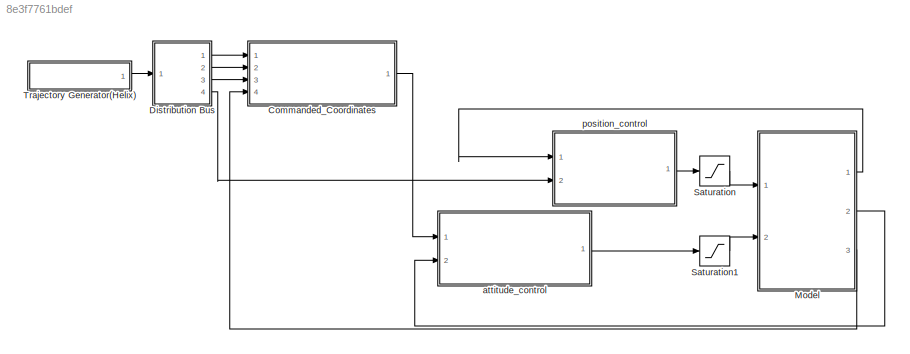
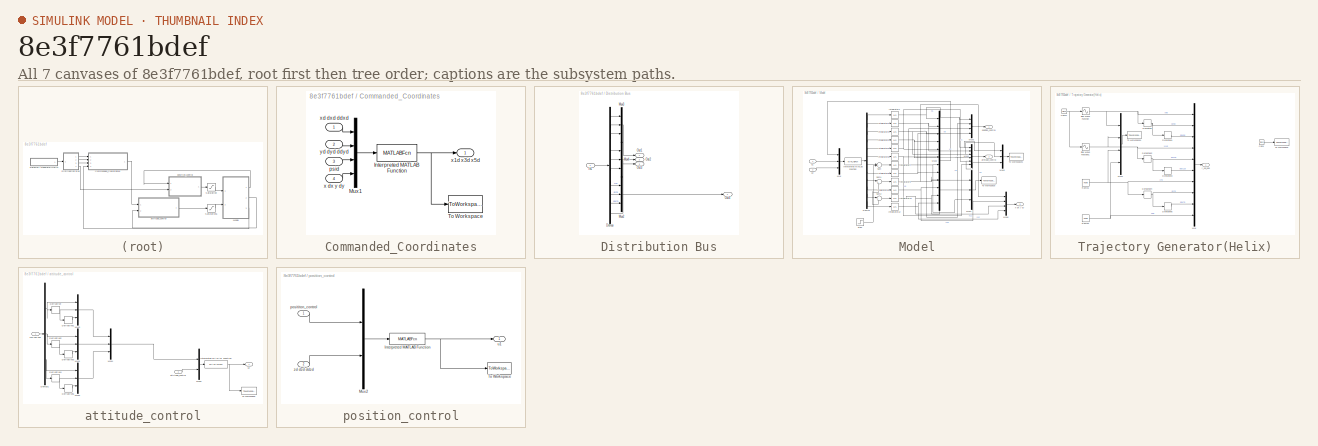
[diagram: thumbnail index - all 7 canvases of the model, root first then tree order]
MODEL slx_8e3f7761bdef
KIND model
BLOCK [SubSystem] Commanded_Coordinates
  Ports = [4, 1]
  RequestExecContextInheritance = off
BLOCK [MATLABFcn] Commanded_Coordinates/Interpreted MATLAB Function
  MATLABFcn = commanded_cord(u)
  OutputDimensions = 3
  Ports = [1, 1]
BLOCK [Mux] Commanded_Coordinates/Mux1
  DisplayOption = bar
  Ports = [4, 1]
BLOCK [ToWorkspace] Commanded_Coordinates/To Workspace
  FixptAsFi = on
  MaxDataPoints = inf
  Ports = [1]
  SampleTime = -1
  Save2DSignal = 3-D array (concatenate along third dimension)
  VariableName = angc
BLOCK [Inport] Commanded_Coordinates/psid
  IconDisplay = Port number
  Port = 3
BLOCK [Inport] Commanded_Coordinates/x dx y dy
  IconDisplay = Port number
  Port = 4
BLOCK [Outport] Commanded_Coordinates/x1d x3d x5d
  IconDisplay = Port number
BLOCK [Inport] Commanded_Coordinates/xd dxd ddxd
  IconDisplay = Port number
BLOCK [Inport] Commanded_Coordinates/yd dyd ddyd
  IconDisplay = Port number
  Port = 2
BLOCK [SubSystem] Distribution Bus
  Ports = [1, 4]
  RequestExecContextInheritance = off
BLOCK [Demux] Distribution Bus/Demux
  DisplayOption = bar
  Outputs = 10
  Ports = [1, 10]
BLOCK [Inport] Distribution Bus/In1
  IconDisplay = Port number
BLOCK [Mux] Distribution Bus/Mux2
  DisplayOption = bar
  Inputs = 3
  Ports = [3, 1]
BLOCK [Mux] Distribution Bus/Mux3
  DisplayOption = bar
  Inputs = 3
  Ports = [3, 1]
BLOCK [Mux] Distribution Bus/Mux4
  DisplayOption = bar
  Inputs = 3
  Ports = [3, 1]
BLOCK [Outport] Distribution Bus/Out1
  IconDisplay = Port number
BLOCK [Outport] Distribution Bus/Out2
  IconDisplay = Port number
  Port = 2
BLOCK [Outport] Distribution Bus/Out3
  IconDisplay = Port number
  Port = 3
BLOCK [Outport] Distribution Bus/Out4
  IconDisplay = Port number
  Port = 4
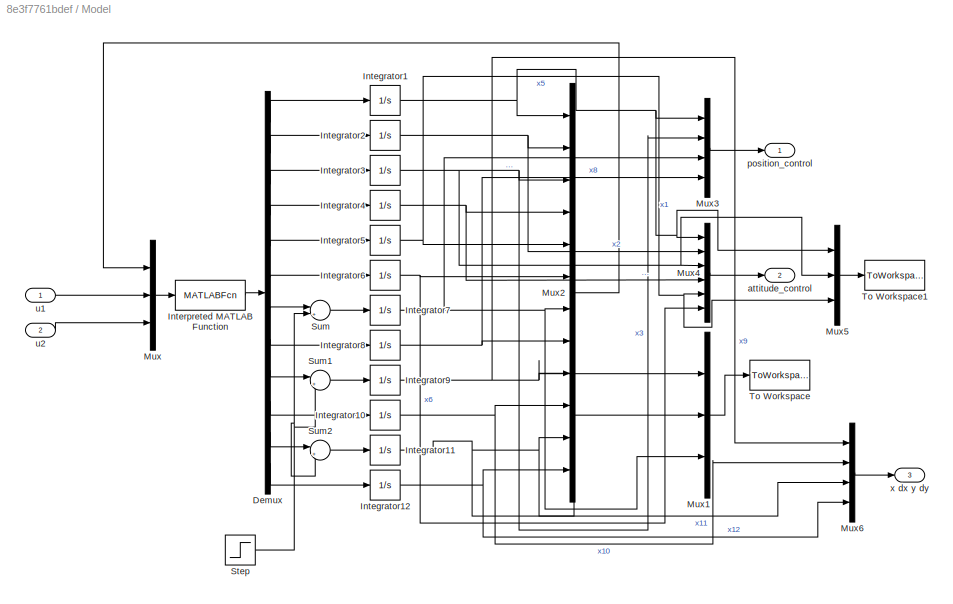
BLOCK [SubSystem] Model
  Ports = [2, 3]
  RequestExecContextInheritance = off
BLOCK [Demux] Model/Demux
  DisplayOption = bar
  Outputs = 12
  Ports = [1, 12]
BLOCK [Integrator] Model/Integrator1
  Ports = [1, 1]
BLOCK [Integrator] Model/Integrator10
  Ports = [1, 1]
BLOCK [Integrator] Model/Integrator11
  InitialCondition = 8
  Ports = [1, 1]
BLOCK [Integrator] Model/Integrator12
  Ports = [1, 1]
BLOCK [Integrator] Model/Integrator2
  Ports = [1, 1]
BLOCK [Integrator] Model/Integrator3
  Ports = [1, 1]
BLOCK [Integrator] Model/Integrator4
  Ports = [1, 1]
BLOCK [Integrator] Model/Integrator5
  Ports = [1, 1]
BLOCK [Integrator] Model/Integrator6
  Ports = [1, 1]
BLOCK [Integrator] Model/Integrator7
  InitialCondition = -8
  Ports = [1, 1]
BLOCK [Integrator] Model/Integrator8
  Ports = [1, 1]
BLOCK [Integrator] Model/Integrator9
  Ports = [1, 1]
BLOCK [MATLABFcn] Model/Interpreted MATLAB Function
  MATLABFcn = model(u)
  OutputDimensions = 12
  Ports = [1, 1]
BLOCK [Mux] Model/Mux
  DisplayOption = bar
  Inputs = 3
  Ports = [3, 1]
BLOCK [Mux] Model/Mux1
  DisplayOption = bar
  Inputs = 3
  Ports = [3, 1]
BLOCK [Mux] Model/Mux2
  DisplayOption = bar
  Inputs = 12
  Ports = [12, 1]
BLOCK [Mux] Model/Mux3
  DisplayOption = bar
  Ports = [4, 1]
BLOCK [Mux] Model/Mux4
  DisplayOption = bar
  Inputs = 6
  Ports = [6, 1]
BLOCK [Mux] Model/Mux5
  DisplayOption = bar
  Inputs = 3
  Ports = [3, 1]
BLOCK [Mux] Model/Mux6
  DisplayOption = bar
  Ports = [4, 1]
BLOCK [Step] Model/Step
  After = 5
  SampleTime = 0
  Time = 25
BLOCK [Sum] Model/Sum
  IconShape = round
  InputSameDT = off
  Inputs = |++
  OutDataTypeStr = Inherit: Inherit via internal rule
  Ports = [2, 1]
  SaturateOnIntegerOverflow = off
BLOCK [Sum] Model/Sum1
  IconShape = round
  InputSameDT = off
  Inputs = |++
  OutDataTypeStr = Inherit: Inherit via internal rule
  Ports = [2, 1]
  SaturateOnIntegerOverflow = off
BLOCK [Sum] Model/Sum2
  IconShape = round
  InputSameDT = off
  Inputs = |++
  OutDataTypeStr = Inherit: Inherit via internal rule
  Ports = [2, 1]
  SaturateOnIntegerOverflow = off
BLOCK [ToWorkspace] Model/To Workspace
  FixptAsFi = on
  MaxDataPoints = inf
  Ports = [1]
  SampleTime = -1
  Save2DSignal = 3-D array (concatenate along third dimension)
  VariableName = xyz
BLOCK [ToWorkspace] Model/To Workspace1
  FixptAsFi = on
  MaxDataPoints = inf
  Ports = [1]
  SampleTime = -1
  Save2DSignal = 3-D array (concatenate along third dimension)
  VariableName = phi_tht_psi
BLOCK [Outport] Model/attitude_control
  IconDisplay = Port number
  Port = 2
BLOCK [Outport] Model/position_control
  IconDisplay = Port number
BLOCK [Inport] Model/u1
  IconDisplay = Port number
BLOCK [Inport] Model/u2
  IconDisplay = Port number
  Port = 2
BLOCK [Outport] Model/x dx y dy
  IconDisplay = Port number
  Port = 3
BLOCK [Saturate] Saturation
  InputPortMap = u0
  LowerLimit = 0
  Ports = [1, 1]
  UpperLimit = 2*m*g
BLOCK [Saturate] Saturation1
  InputPortMap = u0
  LowerLimit = -0.2
  Ports = [1, 1]
  UpperLimit = 0.2
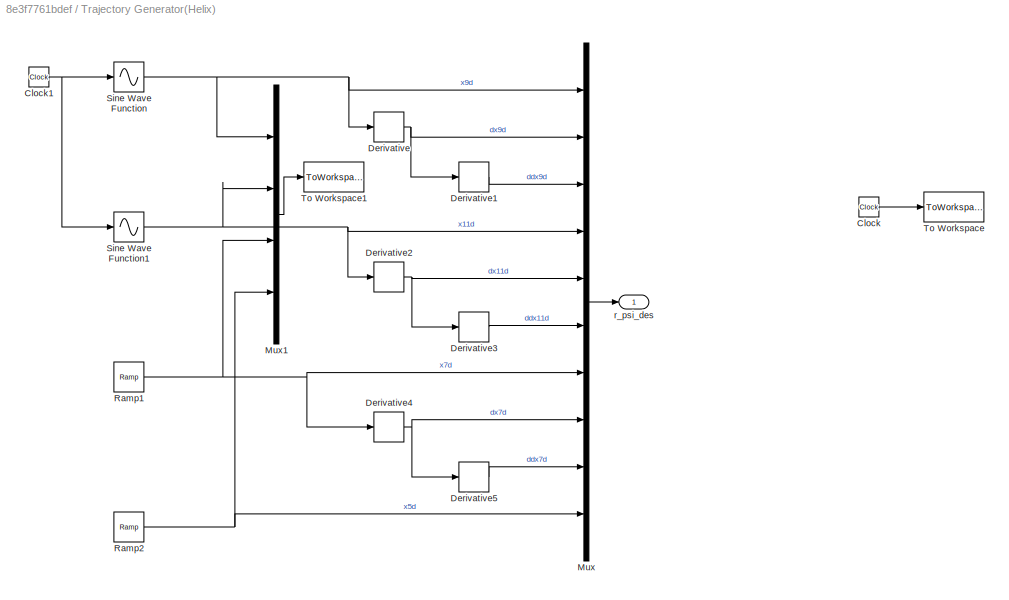
BLOCK [SubSystem] Trajectory Generator(Helix)
  Ports = [0, 1]
  RequestExecContextInheritance = off
BLOCK [Clock] Trajectory Generator(Helix)/Clock
BLOCK [Clock] Trajectory Generator(Helix)/Clock1
BLOCK [Derivative] Trajectory Generator(Helix)/Derivative
BLOCK [Derivative] Trajectory Generator(Helix)/Derivative1
BLOCK [Derivative] Trajectory Generator(Helix)/Derivative2
BLOCK [Derivative] Trajectory Generator(Helix)/Derivative3
BLOCK [Derivative] Trajectory Generator(Helix)/Derivative4
BLOCK [Derivative] Trajectory Generator(Helix)/Derivative5
BLOCK [Mux] Trajectory Generator(Helix)/Mux
  DisplayOption = bar
  Inputs = 10
  Ports = [10, 1]
BLOCK [Mux] Trajectory Generator(Helix)/Mux1
  DisplayOption = bar
  Ports = [4, 1]
BLOCK [Reference] Trajectory Generator(Helix)/Ramp1  REF=simulink/Sources/Ramp
  Ports = [0, 1]
  SourceBlock = simulink/Sources/Ramp
  SourceType = Ramp
  VectorParams1D = on
  X0 = -8
  slope = 0.2
  start = 0
BLOCK [Reference] Trajectory Generator(Helix)/Ramp2  REF=simulink/Sources/Ramp
  Ports = [0, 1]
  SourceBlock = simulink/Sources/Ramp
  SourceType = Ramp
  VectorParams1D = on
  X0 = 0
  slope = 0
  start = 0
BLOCK [Sin] Trajectory Generator(Helix)/Sine Wave Function
  Amplitude = 8
  Frequency = 0.1
  Ports = [1, 1]
  SampleTime = 0
  TimeSource = Use external signal
BLOCK [Sin] Trajectory Generator(Helix)/Sine Wave Function1
  Amplitude = 8
  Frequency = 0.1
  Phase = pi/2
  Ports = [1, 1]
  SampleTime = 0
  TimeSource = Use external signal
BLOCK [ToWorkspace] Trajectory Generator(Helix)/To Workspace
  FixptAsFi = on
  MaxDataPoints = inf
  Ports = [1]
  SampleTime = -1
  Save2DSignal = 3-D array (concatenate along third dimension)
  VariableName = t
BLOCK [ToWorkspace] Trajectory Generator(Helix)/To Workspace1
  FixptAsFi = on
  MaxDataPoints = inf
  Ports = [1]
  SampleTime = -1
  Save2DSignal = 3-D array (concatenate along third dimension)
  VariableName = ref
BLOCK [Outport] Trajectory Generator(Helix)/r_psi_des
  IconDisplay = Port number
BLOCK [SubSystem] attitude_control
  Ports = [2, 1]
  RequestExecContextInheritance = off
BLOCK [Demux] attitude_control/Demux1
  DisplayOption = bar
  Outputs = 3
  Ports = [1, 3]
BLOCK [Derivative] attitude_control/Derivative
BLOCK [Derivative] attitude_control/Derivative1
BLOCK [Derivative] attitude_control/Derivative2
BLOCK [Derivative] attitude_control/Derivative3
BLOCK [Derivative] attitude_control/Derivative4
BLOCK [Derivative] attitude_control/Derivative5
BLOCK [MATLABFcn] attitude_control/Interpreted MATLAB Function
  MATLABFcn = attitude_control(u)
  OutputDimensions = 3
  Ports = [1, 1]
BLOCK [Mux] attitude_control/Mux1
  DisplayOption = bar
  Inputs = 3
  Ports = [3, 1]
BLOCK [Mux] attitude_control/Mux2
  DisplayOption = bar
  Inputs = 3
  Ports = [3, 1]
BLOCK [Mux] attitude_control/Mux3
  DisplayOption = bar
  Inputs = 3
  Ports = [3, 1]
BLOCK [Mux] attitude_control/Mux4
  DisplayOption = bar
  Inputs = 3
  Ports = [3, 1]
BLOCK [Mux] attitude_control/Mux5
  DisplayOption = bar
  Inputs = 2
  Ports = [2, 1]
BLOCK [ToWorkspace] attitude_control/To Workspace
  FixptAsFi = on
  MaxDataPoints = inf
  Ports = [1]
  SampleTime = -1
  Save2DSignal = 3-D array (concatenate along third dimension)
  VariableName = u2
BLOCK [Inport] attitude_control/attitude_control
  IconDisplay = Port number
  Port = 2
BLOCK [Outport] attitude_control/u2
  IconDisplay = Port number
BLOCK [Inport] attitude_control/x1d x3d x5d
  IconDisplay = Port number
BLOCK [SubSystem] position_control
  Ports = [2, 1]
  RequestExecContextInheritance = off
BLOCK [MATLABFcn] position_control/Interpreted MATLAB Function
  MATLABFcn = position_control(u)
  OutputDimensions = 1
  Ports = [1, 1]
BLOCK [Mux] position_control/Mux2
  DisplayOption = bar
  Inputs = 2
  Ports = [2, 1]
BLOCK [ToWorkspace] position_control/To Workspace
  FixptAsFi = on
  MaxDataPoints = inf
  Ports = [1]
  SampleTime = -1
  Save2DSignal = 3-D array (concatenate along third dimension)
  VariableName = u1
BLOCK [Inport] position_control/posititon_control
  IconDisplay = Port number
BLOCK [Outport] position_control/u1
  IconDisplay = Port number
BLOCK [Inport] position_control/zd dzd ddzd
  IconDisplay = Port number
  Port = 2
NET Commanded_Coordinates/Interpreted MATLAB Function:1 -> Commanded_Coordinates/To Workspace:1, Commanded_Coordinates/x1d x3d x5d:1
LINE Commanded_Coordinates/Mux1:1 -> Commanded_Coordinates/Interpreted MATLAB Function:1
LINE Commanded_Coordinates/psid:1 -> Commanded_Coordinates/Mux1:3
LINE Commanded_Coordinates/x dx y dy:1 -> Commanded_Coordinates/Mux1:4
LINE Commanded_Coordinates/xd dxd ddxd:1 -> Commanded_Coordinates/Mux1:1
LINE Commanded_Coordinates/yd dyd ddyd:1 -> Commanded_Coordinates/Mux1:2
LINE Commanded_Coordinates:1 -> attitude_control:1
LINE Distribution Bus/Demux:1 -> Distribution Bus/Mux3:1
LINE Distribution Bus/Demux:10 -> Distribution Bus/Out3:1
LINE Distribution Bus/Demux:2 -> Distribution Bus/Mux3:2
LINE Distribution Bus/Demux:3 -> Distribution Bus/Mux3:3
LINE Distribution Bus/Demux:4 -> Distribution Bus/Mux4:1
LINE Distribution Bus/Demux:5 -> Distribution Bus/Mux4:2
LINE Distribution Bus/Demux:6 -> Distribution Bus/Mux4:3
LINE Distribution Bus/Demux:7 -> Distribution Bus/Mux2:1
LINE Distribution Bus/Demux:8 -> Distribution Bus/Mux2:2
LINE Distribution Bus/Demux:9 -> Distribution Bus/Mux2:3
LINE Distribution Bus/In1:1 -> Distribution Bus/Demux:1
LINE Distribution Bus/Mux2:1 -> Distribution Bus/Out4:1
LINE Distribution Bus/Mux3:1 -> Distribution Bus/Out1:1
LINE Distribution Bus/Mux4:1 -> Distribution Bus/Out2:1
LINE Distribution Bus:1 -> Commanded_Coordinates:1
LINE Distribution Bus:2 -> Commanded_Coordinates:2
LINE Distribution Bus:3 -> Commanded_Coordinates:3
LINE Distribution Bus:4 -> position_control:2
LINE Model/Demux:1 -> Model/Integrator1:1
LINE Model/Demux:10 -> Model/Integrator10:1
LINE Model/Demux:11 -> Model/Sum2:1
LINE Model/Demux:12 -> Model/Integrator12:1
LINE Model/Demux:2 -> Model/Integrator2:1
LINE Model/Demux:3 -> Model/Integrator3:1
LINE Model/Demux:4 -> Model/Integrator4:1
LINE Model/Demux:5 -> Model/Integrator5:1
LINE Model/Demux:6 -> Model/Integrator6:1
LINE Model/Demux:7 -> Model/Sum:1
LINE Model/Demux:8 -> Model/Integrator8:1
LINE Model/Demux:9 -> Model/Sum1:1
NET Model/Integrator10:1 -> Model/Mux2:10, Model/Mux6:2
NET Model/Integrator11:1 -> Model/Mux1:2, Model/Mux2:11, Model/Mux6:3
NET Model/Integrator12:1 -> Model/Mux2:12, Model/Mux6:4
NET Model/Integrator1:1 -> Model/Mux2:1, Model/Mux3:1, Model/Mux4:1, Model/Mux5:1
NET Model/Integrator2:1 -> Model/Mux2:2, Model/Mux4:2
NET Model/Integrator3:1 -> Model/Mux2:3, Model/Mux3:2, Model/Mux4:3, Model/Mux5:2
NET Model/Integrator4:1 -> Model/Mux2:4, Model/Mux4:4
NET Model/Integrator5:1 -> Model/Mux2:5, Model/Mux4:5, Model/Mux5:3
NET Model/Integrator6:1 -> Model/Mux2:6, Model/Mux4:6
NET Model/Integrator7:1 -> Model/Mux1:3, Model/Mux2:7, Model/Mux3:3
NET Model/Integrator8:1 -> Model/Mux2:8, Model/Mux3:4
NET Model/Integrator9:1 -> Model/Mux1:1, Model/Mux2:9, Model/Mux6:1
LINE Model/Interpreted MATLAB Function:1 -> Model/Demux:1
LINE Model/Mux1:1 -> Model/To Workspace:1
LINE Model/Mux2:1 -> Model/Mux:1
LINE Model/Mux3:1 -> Model/position_control:1
LINE Model/Mux4:1 -> Model/attitude_control:1
LINE Model/Mux5:1 -> Model/To Workspace1:1
LINE Model/Mux6:1 -> Model/x dx y dy:1
LINE Model/Mux:1 -> Model/Interpreted MATLAB Function:1
NET Model/Step:1 -> Model/Sum1:2, Model/Sum2:2, Model/Sum:2
LINE Model/Sum1:1 -> Model/Integrator9:1
LINE Model/Sum2:1 -> Model/Integrator11:1
LINE Model/Sum:1 -> Model/Integrator7:1
LINE Model/u1:1 -> Model/Mux:2
LINE Model/u2:1 -> Model/Mux:3
LINE Model:1 -> position_control:1
LINE Model:2 -> attitude_control:2
LINE Model:3 -> Commanded_Coordinates:4
LINE Saturation1:1 -> Model:2
LINE Saturation:1 -> Model:1
NET Trajectory Generator(Helix)/Clock1:1 -> Trajectory Generator(Helix)/Sine Wave Function1:1, Trajectory Generator(Helix)/Sine Wave Function:1
LINE Trajectory Generator(Helix)/Clock:1 -> Trajectory Generator(Helix)/To Workspace:1
LINE Trajectory Generator(Helix)/Derivative1:1 -> Trajectory Generator(Helix)/Mux:3
NET Trajectory Generator(Helix)/Derivative2:1 -> Trajectory Generator(Helix)/Derivative3:1, Trajectory Generator(Helix)/Mux:5
LINE Trajectory Generator(Helix)/Derivative3:1 -> Trajectory Generator(Helix)/Mux:6
NET Trajectory Generator(Helix)/Derivative4:1 -> Trajectory Generator(Helix)/Derivative5:1, Trajectory Generator(Helix)/Mux:8
LINE Trajectory Generator(Helix)/Derivative5:1 -> Trajectory Generator(Helix)/Mux:9
NET Trajectory Generator(Helix)/Derivative:1 -> Trajectory Generator(Helix)/Derivative1:1, Trajectory Generator(Helix)/Mux:2
LINE Trajectory Generator(Helix)/Mux1:1 -> Trajectory Generator(Helix)/To Workspace1:1
LINE Trajectory Generator(Helix)/Mux:1 -> Trajectory Generator(Helix)/r_psi_des:1
NET Trajectory Generator(Helix)/Ramp1:1 -> Trajectory Generator(Helix)/Derivative4:1, Trajectory Generator(Helix)/Mux1:3, Trajectory Generator(Helix)/Mux:7
NET Trajectory Generator(Helix)/Ramp2:1 -> Trajectory Generator(Helix)/Mux1:4, Trajectory Generator(Helix)/Mux:10
NET Trajectory Generator(Helix)/Sine Wave Function1:1 -> Trajectory Generator(Helix)/Derivative2:1, Trajectory Generator(Helix)/Mux1:2, Trajectory Generator(Helix)/Mux:4
NET Trajectory Generator(Helix)/Sine Wave Function:1 -> Trajectory Generator(Helix)/Derivative:1, Trajectory Generator(Helix)/Mux1:1, Trajectory Generator(Helix)/Mux:1
LINE Trajectory Generator(Helix):1 -> Distribution Bus:1
NET attitude_control/Demux1:1 -> attitude_control/Derivative:1, attitude_control/Mux3:1
NET attitude_control/Demux1:2 -> attitude_control/Derivative2:1, attitude_control/Mux1:1
NET attitude_control/Demux1:3 -> attitude_control/Derivative4:1, attitude_control/Mux2:1
LINE attitude_control/Derivative1:1 -> attitude_control/Mux3:3
NET attitude_control/Derivative2:1 -> attitude_control/Derivative3:1, attitude_control/Mux1:2
LINE attitude_control/Derivative3:1 -> attitude_control/Mux1:3
NET attitude_control/Derivative4:1 -> attitude_control/Derivative5:1, attitude_control/Mux2:2
LINE attitude_control/Derivative5:1 -> attitude_control/Mux2:3
NET attitude_control/Derivative:1 -> attitude_control/Derivative1:1, attitude_control/Mux3:2
NET attitude_control/Interpreted MATLAB Function:1 -> attitude_control/To Workspace:1, attitude_control/u2:1
LINE attitude_control/Mux1:1 -> attitude_control/Mux4:2
LINE attitude_control/Mux2:1 -> attitude_control/Mux4:3
LINE attitude_control/Mux3:1 -> attitude_control/Mux4:1
LINE attitude_control/Mux4:1 -> attitude_control/Mux5:1
LINE attitude_control/Mux5:1 -> attitude_control/Interpreted MATLAB Function:1
LINE attitude_control/attitude_control:1 -> attitude_control/Mux5:2
LINE attitude_control/x1d x3d x5d:1 -> attitude_control/Demux1:1
LINE attitude_control:1 -> Saturation1:1
NET position_control/Interpreted MATLAB Function:1 -> position_control/To Workspace:1, position_control/u1:1
LINE position_control/Mux2:1 -> position_control/Interpreted MATLAB Function:1
LINE position_control/posititon_control:1 -> position_control/Mux2:1
LINE position_control/zd dzd ddzd:1 -> position_control/Mux2:2
LINE position_control:1 -> Saturation:1
note: NET lines group one-source signal fan-out (src -> all destinations, sorted); 1:1 wires keep LINE
